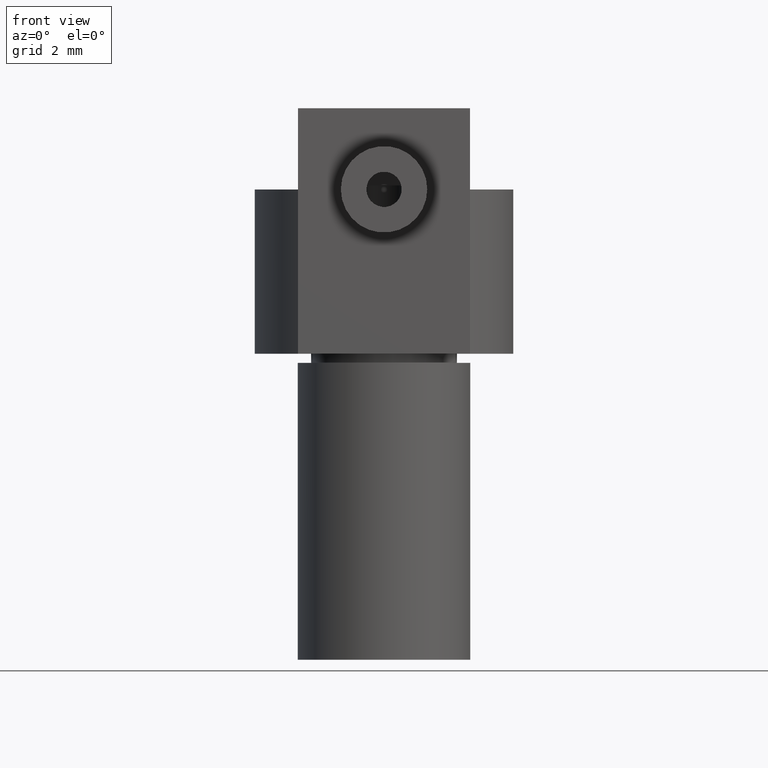
[diagram: clean part render]
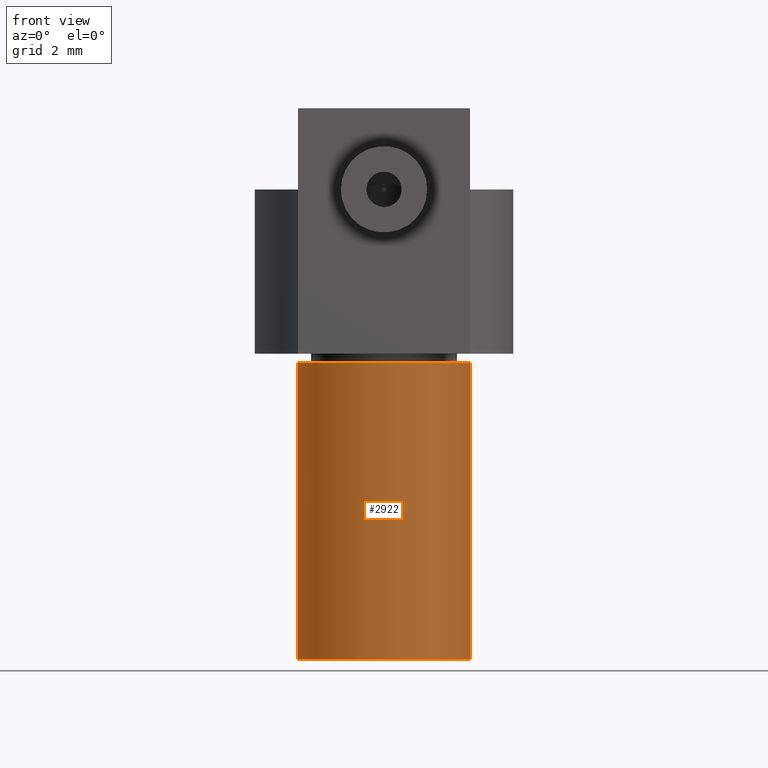
[diagram: same view with one face highlighted and labeled with its STEP entity id]
A machine part, front view. The second image highlights one B-rep face of the part: STEP entity #2922.
In plain terms, the highlighted cylindrical surface (bore or boss wall) has radius 1.995 mm, axis along (0, 0, 1).
Its self-contained STEP definition (entity closure, byte-faithful):
#2859 = EDGE_CURVE('',#2860,#2860,#2862,.T.);
#2860 = VERTEX_POINT('',#2861);
#2861 = CARTESIAN_POINT('',(5.148106860388,0.,7.568411163393));
#2862 = SURFACE_CURVE('',#2863,(#2868,#2884),.PCURVE_S1.);
#2863 = CIRCLE('',#2864,1.995);
#2864 = AXIS2_PLACEMENT_3D('',#2865,#2866,#2867);
#2865 = CARTESIAN_POINT('',(3.153106860388,0.,7.568411163393));
#2866 = DIRECTION('',(0.,0.,-1.));
#2867 = DIRECTION('',(1.,0.,0.));
#2868 = PCURVE('',#2869,#2874);
#2869 = PLANE('',#2870);
#2870 = AXIS2_PLACEMENT_3D('',#2871,#2872,#2873);
#2871 = CARTESIAN_POINT('',(3.153106860388,0.,7.568411163393));
#2872 = DIRECTION('',(0.,0.,1.));
#2873 = DIRECTION('',(1.,0.,-0.));
#2874 = DEFINITIONAL_REPRESENTATION('',(#2875),#2883);
#2875 = ( BOUNDED_CURVE() B_SPLINE_CURVE(2,(#2876,#2877,#2878,#2879,
#2880,#2881,#2882),.UNSPECIFIED.,.T.,.F.) B_SPLINE_CURVE_WITH_KNOTS((1,2
    ,2,2,2,1),(-2.094395102393,0.,2.094395102393,4.188790204786,
6.28318530718,8.377580409573),.UNSPECIFIED.) CURVE() 
GEOMETRIC_REPRESENTATION_ITEM() RATIONAL_B_SPLINE_CURVE((1.,0.5,1.,0.5,
1.,0.5,1.)) REPRESENTATION_ITEM('') );
#2876 = CARTESIAN_POINT('',(1.995,0.));
#2877 = CARTESIAN_POINT('',(1.995,-3.4554413611));
#2878 = CARTESIAN_POINT('',(-0.9975,-1.72772068055));
#2879 = CARTESIAN_POINT('',(-3.99,-4.886340728598E-16));
#2880 = CARTESIAN_POINT('',(-0.9975,1.72772068055));
#2881 = CARTESIAN_POINT('',(1.995,3.4554413611));
#2882 = CARTESIAN_POINT('',(1.995,0.));
#2883 = ( GEOMETRIC_REPRESENTATION_CONTEXT(2) 
PARAMETRIC_REPRESENTATION_CONTEXT() REPRESENTATION_CONTEXT('2D SPACE',''
  ) );
#2884 = PCURVE('',#2885,#2890);
#2885 = CYLINDRICAL_SURFACE('',#2886,1.995);
#2886 = AXIS2_PLACEMENT_3D('',#2887,#2888,#2889);
#2887 = CARTESIAN_POINT('',(3.153106860388,0.,0.698411163393));
#2888 = DIRECTION('',(0.,0.,1.));
#2889 = DIRECTION('',(1.,0.,-0.));
#2890 = DEFINITIONAL_REPRESENTATION('',(#2891),#2895);
#2891 = LINE('',#2892,#2893);
#2892 = CARTESIAN_POINT('',(6.28318530718,6.87));
#2893 = VECTOR('',#2894,1.);
#2894 = DIRECTION('',(-1.,0.));
#2895 = ( GEOMETRIC_REPRESENTATION_CONTEXT(2) 
PARAMETRIC_REPRESENTATION_CONTEXT() REPRESENTATION_CONTEXT('2D SPACE',''
  ) );
#2922 = ADVANCED_FACE('',(#2923),#2885,.T.);
#2923 = FACE_BOUND('',#2924,.T.);
#2924 = EDGE_LOOP('',(#2925,#2926,#2948,#2975));
#2925 = ORIENTED_EDGE('',*,*,#2859,.T.);
#2926 = ORIENTED_EDGE('',*,*,#2927,.F.);
#2927 = EDGE_CURVE('',#2928,#2860,#2930,.T.);
#2928 = VERTEX_POINT('',#2929);
#2929 = CARTESIAN_POINT('',(5.148106860388,0.,0.698411163393));
#2930 = SEAM_CURVE('',#2931,(#2934,#2941),.PCURVE_S1.);
#2931 = B_SPLINE_CURVE_WITH_KNOTS('',1,(#2932,#2933),.UNSPECIFIED.,.F.,
  .F.,(2,2),(0.,6.87),.PIECEWISE_BEZIER_KNOTS.);
#2932 = CARTESIAN_POINT('',(5.148106860388,-4.886340728598E-16,
    0.698411163393));
#2933 = CARTESIAN_POINT('',(5.148106860388,-4.886340728598E-16,
    7.568411163393));
#2934 = PCURVE('',#2885,#2935);
#2935 = DEFINITIONAL_REPRESENTATION('',(#2936),#2940);
#2936 = LINE('',#2937,#2938);
#2937 = CARTESIAN_POINT('',(0.,0.));
#2938 = VECTOR('',#2939,1.);
#2939 = DIRECTION('',(0.,1.));
#2940 = ( GEOMETRIC_REPRESENTATION_CONTEXT(2) 
PARAMETRIC_REPRESENTATION_CONTEXT() REPRESENTATION_CONTEXT('2D SPACE',''
  ) );
#2941 = PCURVE('',#2885,#2942);
#2942 = DEFINITIONAL_REPRESENTATION('',(#2943),#2947);
#2943 = LINE('',#2944,#2945);
#2944 = CARTESIAN_POINT('',(6.28318530718,0.));
#2945 = VECTOR('',#2946,1.);
#2946 = DIRECTION('',(0.,1.));
#2947 = ( GEOMETRIC_REPRESENTATION_CONTEXT(2) 
PARAMETRIC_REPRESENTATION_CONTEXT() REPRESENTATION_CONTEXT('2D SPACE',''
  ) );
#2948 = ORIENTED_EDGE('',*,*,#2949,.T.);
#2949 = EDGE_CURVE('',#2928,#2928,#2950,.T.);
#2950 = SURFACE_CURVE('',#2951,(#2956,#2963),.PCURVE_S1.);
#2951 = CIRCLE('',#2952,1.995);
#2952 = AXIS2_PLACEMENT_3D('',#2953,#2954,#2955);
#2953 = CARTESIAN_POINT('',(3.153106860388,0.,0.698411163393));
#2954 = DIRECTION('',(0.,0.,1.));
#2955 = DIRECTION('',(1.,0.,-0.));
#2956 = PCURVE('',#2885,#2957);
#2957 = DEFINITIONAL_REPRESENTATION('',(#2958),#2962);
#2958 = LINE('',#2959,#2960);
#2959 = CARTESIAN_POINT('',(0.,0.));
#2960 = VECTOR('',#2961,1.);
#2961 = DIRECTION('',(1.,0.));
#2962 = ( GEOMETRIC_REPRESENTATION_CONTEXT(2) 
PARAMETRIC_REPRESENTATION_CONTEXT() REPRESENTATION_CONTEXT('2D SPACE',''
  ) );
#2963 = PCURVE('',#2964,#2969);
#2964 = PLANE('',#2965);
#2965 = AXIS2_PLACEMENT_3D('',#2966,#2967,#2968);
#2966 = CARTESIAN_POINT('',(3.153106860388,0.,0.698411163393));
#2967 = DIRECTION('',(0.,0.,1.));
#2968 = DIRECTION('',(1.,0.,-0.));
#2969 = DEFINITIONAL_REPRESENTATION('',(#2970),#2974);
#2970 = CIRCLE('',#2971,1.995);
#2971 = AXIS2_PLACEMENT_2D('',#2972,#2973);
#2972 = CARTESIAN_POINT('',(0.,0.));
#2973 = DIRECTION('',(1.,0.));
#2974 = ( GEOMETRIC_REPRESENTATION_CONTEXT(2) 
PARAMETRIC_REPRESENTATION_CONTEXT() REPRESENTATION_CONTEXT('2D SPACE',''
  ) );
#2975 = ORIENTED_EDGE('',*,*,#2927,.T.);